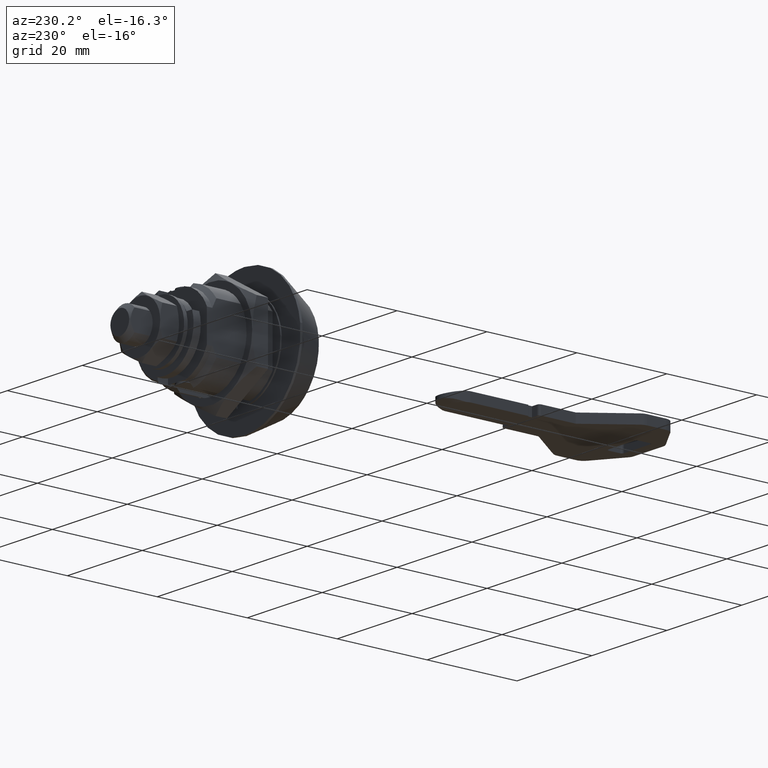
[diagram: clean part render]
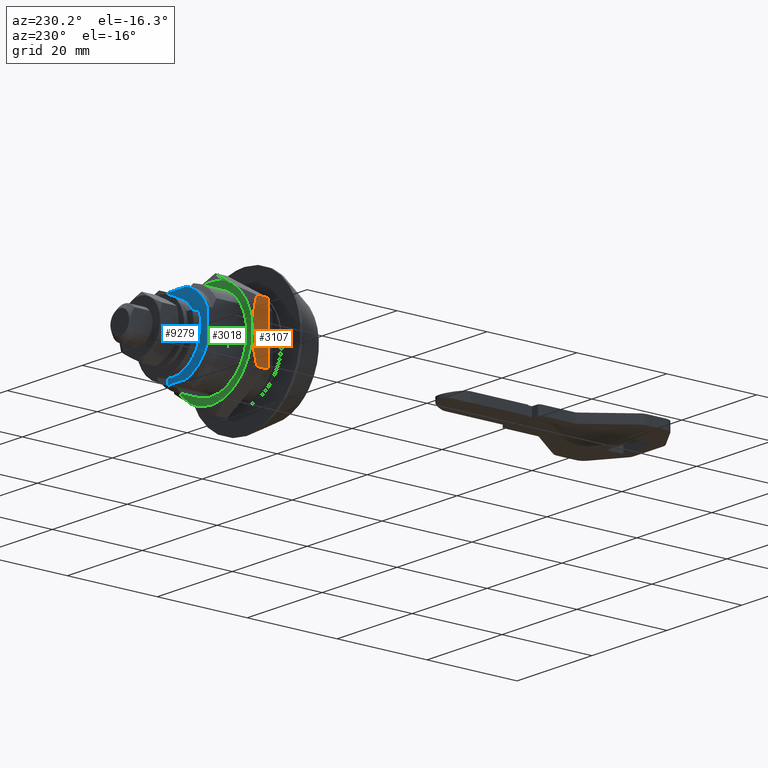
[diagram: same view with three faces highlighted in distinct colors, each labeled with its STEP entity id]
A machine part, auxiliary view with three faces highlighted in distinct colors.
Their STEP definitions:

[orange] entity #3107 — the highlighted face is a freeform B-spline surface patch.
#2591=CARTESIAN_POINT('',(14.696936499999961,10.999999999735300,-3.595346E-012));
#2592=VERTEX_POINT('',#2591);
#2593=CARTESIAN_POINT('',(13.714456260781160,11.0,6.350852499728091));
#2594=VERTEX_POINT('',#2593);
#2595=CARTESIAN_POINT('',(14.696936499999961,10.999999999735300,-3.595346E-012));
#2596=CARTESIAN_POINT('',(14.696936499683121,11.0,0.000649095458450));
#2597=CARTESIAN_POINT('',(14.696936466676410,11.0,0.001298193034377));
#2598=CARTESIAN_POINT('',(14.696881535420310,11.0,0.538752455056011));
#2599=CARTESIAN_POINT('',(14.674018618691980,11.0,1.077299106345763));
#2600=CARTESIAN_POINT('',(14.617292834053959,11.0,1.752631571285625));
#2601=CARTESIAN_POINT('',(14.604553853599279,11.0,1.887688777856347));
#2602=CARTESIAN_POINT('',(14.576460803111591,11.0,2.156802596397145));
#2603=CARTESIAN_POINT('',(14.530364736479941,11.0,2.559401312470946));
#2604=CARTESIAN_POINT('',(14.472827151715050,11.0,2.958899947679643));
#2605=CARTESIAN_POINT('',(14.257617568047310,11.0,4.284217053862167));
#2606=CARTESIAN_POINT('',(14.010811587521379,11.0,5.324247477779774));
#2607=CARTESIAN_POINT('',(13.714456260781169,11.0,6.350852499728091));
#2608=B_SPLINE_CURVE_WITH_KNOTS('',3,(#2595,#2596,#2597,#2598,#2599,#2600,#2601,#2602,#2603,#2604,#2605,#2606,#2607),.UNSPECIFIED.,.F.,.U.,(4,2,2,2,1,2,4),(0.499848851089907,0.500000000000000,0.625000000000000,0.656250000000000,0.687500000000000,0.750000000000000,1.0),.UNSPECIFIED.);
#2609=EDGE_CURVE('',#2592,#2594,#2608,.T.);
#2658=CARTESIAN_POINT('',(13.714456116288661,11.0,-6.350853000272000));
#2659=VERTEX_POINT('',#2658);
#2673=CARTESIAN_POINT('',(13.714456116288661,11.0,-6.350853000272000));
#2674=CARTESIAN_POINT('',(13.863602849991469,11.0,-5.834193561550443));
#2675=CARTESIAN_POINT('',(14.000526647742580,11.0,-5.312781220465534));
#2676=CARTESIAN_POINT('',(14.243473329701541,11.0,-4.257940683382483));
#2677=CARTESIAN_POINT('',(14.348373737238671,11.0,-3.729045310445259));
#2678=CARTESIAN_POINT('',(14.519348711964980,11.0,-2.668498013687919));
#2679=CARTESIAN_POINT('',(14.585409717107330,11.0,-2.136741072788912));
#2680=CARTESIAN_POINT('',(14.674193380271610,11.0,-1.070567223564930));
#2681=CARTESIAN_POINT('',(14.696936229430859,11.0,-0.536151856917068));
#2682=CARTESIAN_POINT('',(14.696936499999961,10.999999999735300,-3.595346E-012));
#2683=B_SPLINE_CURVE_WITH_KNOTS('',3,(#2673,#2674,#2675,#2676,#2677,#2678,#2679,#2680,#2681,#2682),.UNSPECIFIED.,.F.,.U.,(4,2,2,2,4),(0.0,0.125000000000000,0.250000000000000,0.375000000000000,0.499848851058027),.UNSPECIFIED.);
#2684=EDGE_CURVE('',#2659,#2592,#2683,.T.);
#2950=CARTESIAN_POINT('',(11.196936499999980,11.0,6.350852499728091));
#2951=VERTEX_POINT('',#2950);
#2957=CARTESIAN_POINT('',(11.196936499999980,11.0,-6.350853000272000));
#2958=VERTEX_POINT('',#2957);
#2959=CARTESIAN_POINT('',(11.196936499999980,11.0,6.350852499728091));
#2960=CARTESIAN_POINT('',(11.196936499999980,11.0,-6.350853000272000));
#2961=QUASI_UNIFORM_CURVE('',1,(#2959,#2960),.UNSPECIFIED.,.F.,.U.);
#2962=EDGE_CURVE('',#2951,#2958,#2961,.T.);
#3082=CARTESIAN_POINT('',(13.714456116288661,11.0,-6.350853000272000));
#3083=CARTESIAN_POINT('',(11.196936499999980,11.0,-6.350853000272000));
#3084=QUASI_UNIFORM_CURVE('',1,(#3082,#3083),.UNSPECIFIED.,.F.,.U.);
#3085=EDGE_CURVE('',#2659,#2958,#3084,.T.);
#3091=CARTESIAN_POINT('',(11.022111605350149,11.0,-6.985303165378635));
#3092=CARTESIAN_POINT('',(11.022111605350149,11.0,6.985303005521017));
#3093=CARTESIAN_POINT('',(14.871761582404419,11.0,-6.985303165378635));
#3094=CARTESIAN_POINT('',(14.871761582404419,11.0,6.985303005521017));
#3095=B_SPLINE_SURFACE_WITH_KNOTS('',1,1,((#3091,#3093),(#3092,#3094)),.UNSPECIFIED.,.F.,.F.,.U.,(2,2),(2,2),(0.0,13.970606170899650),(0.0,3.849649977054277),.UNSPECIFIED.);
#3096=ORIENTED_EDGE('',*,*,#2684,.F.);
#3097=ORIENTED_EDGE('',*,*,#3085,.T.);
#3098=ORIENTED_EDGE('',*,*,#2962,.F.);
#3099=CARTESIAN_POINT('',(13.714456260781160,11.0,6.350852499728091));
#3100=CARTESIAN_POINT('',(11.196936499999980,11.0,6.350852499728091));
#3101=QUASI_UNIFORM_CURVE('',1,(#3099,#3100),.UNSPECIFIED.,.F.,.U.);
#3102=EDGE_CURVE('',#2594,#2951,#3101,.T.);
#3103=ORIENTED_EDGE('',*,*,#3102,.F.);
#3104=ORIENTED_EDGE('',*,*,#2609,.F.);
#3105=EDGE_LOOP('',(#3096,#3097,#3098,#3103,#3104));
#3106=FACE_OUTER_BOUND('',#3105,.T.);
#3107=ADVANCED_FACE('',(#3106),#3095,.T.);

[blue] entity #9279 — the highlighted face is a freeform B-spline surface patch.
#7384=CARTESIAN_POINT('',(22.199999999999999,-4.799817230746421,0.041887370760816));
#7385=VERTEX_POINT('',#7384);
#7391=CARTESIAN_POINT('',(22.199999999999999,-3.595346E-012,-4.800000000038019));
#7392=VERTEX_POINT('',#7391);
#7393=CARTESIAN_POINT('',(22.199999999999996,-4.799817230746421,0.041887370760816));
#7394=CARTESIAN_POINT('',(22.200000000000003,-4.800000000041614,0.020944084307844));
#7395=CARTESIAN_POINT('',(22.199999999999999,-4.800000000041615,0.0));
#7396=CARTESIAN_POINT('',(22.200000000000006,-4.800000000041614,-4.800000000038019));
#7397=CARTESIAN_POINT('',(22.199999999999999,-3.595346E-012,-4.800000000038019));
#7405=(BOUNDED_CURVE()B_SPLINE_CURVE(2,(#7393,#7394,#7395,#7396,#7397),.UNSPECIFIED.,.F.,.U.)B_SPLINE_CURVE_WITH_KNOTS((3,2,3),(0.248460105637982,0.250000000000000,0.500000000000000),.UNSPECIFIED.)CURVE()GEOMETRIC_REPRESENTATION_ITEM()RATIONAL_B_SPLINE_CURVE((0.996414028037849,0.998195901534704,1.0,0.707106781186548,1.0))REPRESENTATION_ITEM(''));
#7406=EDGE_CURVE('',#7385,#7392,#7405,.T.);
#7408=CARTESIAN_POINT('',(22.199999999999999,4.762878908323616,-0.595805761050369));
#7409=VERTEX_POINT('',#7408);
#7410=CARTESIAN_POINT('',(22.199999999999999,-3.595346E-012,-4.800000000038019));
#7411=CARTESIAN_POINT('',(22.199999999999992,4.236961034630419,-4.800000000038019));
#7412=CARTESIAN_POINT('',(22.199999999999996,4.762878908323616,-0.595805761050369));
#7420=(BOUNDED_CURVE()B_SPLINE_CURVE(2,(#7410,#7411,#7412),.UNSPECIFIED.,.F.,.U.)B_SPLINE_CURVE_WITH_KNOTS((3,3),(0.500000000000000,0.728526377274444),.UNSPECIFIED.)CURVE()GEOMETRIC_REPRESENTATION_ITEM()RATIONAL_B_SPLINE_CURVE((1.0,0.732264695105243,0.954006024579027))REPRESENTATION_ITEM(''));
#7421=EDGE_CURVE('',#7392,#7409,#7420,.T.);
#7471=CARTESIAN_POINT('',(22.199999999999999,-3.595346E-012,4.800000000038019));
#7472=VERTEX_POINT('',#7471);
#7473=CARTESIAN_POINT('',(22.199999999999996,4.762878908323616,-0.595805761050369));
#7474=CARTESIAN_POINT('',(22.199999999999996,4.800000000034425,-0.299059277072419));
#7475=CARTESIAN_POINT('',(22.199999999999999,4.800000000034425,0.0));
#7476=CARTESIAN_POINT('',(22.200000000000006,4.800000000034424,4.800000000038019));
#7477=CARTESIAN_POINT('',(22.199999999999999,-3.595346E-012,4.800000000038019));
#7485=(BOUNDED_CURVE()B_SPLINE_CURVE(2,(#7473,#7474,#7475,#7476,#7477),.UNSPECIFIED.,.F.,.U.)B_SPLINE_CURVE_WITH_KNOTS((3,2,3),(0.728526377274444,0.750000000000000,1.0),.UNSPECIFIED.)CURVE()GEOMETRIC_REPRESENTATION_ITEM()RATIONAL_B_SPLINE_CURVE((0.954006024579027,0.974842086081305,1.0,0.707106781186548,1.0))REPRESENTATION_ITEM(''));
#7486=EDGE_CURVE('',#7409,#7472,#7485,.T.);
#7488=CARTESIAN_POINT('',(22.199999999999999,-3.595346E-012,4.800000000038019));
#7489=CARTESIAN_POINT('',(22.200000000000003,-4.758293810166945,4.800000000038020));
#7490=CARTESIAN_POINT('',(22.199999999999996,-4.799817230746421,0.041887370760816));
#7498=(BOUNDED_CURVE()B_SPLINE_CURVE(2,(#7488,#7489,#7490),.UNSPECIFIED.,.F.,.U.)B_SPLINE_CURVE_WITH_KNOTS((3,3),(0.0,0.248460105637982),.UNSPECIFIED.)CURVE()GEOMETRIC_REPRESENTATION_ITEM()RATIONAL_B_SPLINE_CURVE((1.0,0.708910879651844,0.996414028037849))REPRESENTATION_ITEM(''));
#7499=EDGE_CURVE('',#7472,#7385,#7498,.T.);
#8160=CARTESIAN_POINT('',(22.199999999999999,-2.722399E-010,-8.249999999728090));
#8161=VERTEX_POINT('',#8160);
#8211=CARTESIAN_POINT('',(22.200000000000252,1.799999999727915,-8.249999999728090));
#8212=VERTEX_POINT('',#8211);
#8249=CARTESIAN_POINT('',(22.200000000000252,1.799999999727915,-8.409518416442550));
#8250=VERTEX_POINT('',#8249);
#8256=CARTESIAN_POINT('',(22.200000000000252,1.799999999727915,-8.409518416442550));
#8257=CARTESIAN_POINT('',(22.200000000000252,1.799999999727915,-8.249999999728090));
#8258=QUASI_UNIFORM_CURVE('',1,(#8256,#8257),.UNSPECIFIED.,.F.,.U.);
#8259=EDGE_CURVE('',#8250,#8212,#8258,.T.);
#8346=CARTESIAN_POINT('',(22.199999999999999,-2.722389E-010,8.249999999728090));
#8347=VERTEX_POINT('',#8346);
#8417=CARTESIAN_POINT('',(22.199999999999999,-1.800000000272080,8.249999999728090));
#8418=VERTEX_POINT('',#8417);
#8451=CARTESIAN_POINT('',(22.199999999999999,-1.800000000272080,8.409518416318871));
#8452=VERTEX_POINT('',#8451);
#8458=CARTESIAN_POINT('',(22.199999999999999,-1.800000000272080,8.409518416318871));
#8459=CARTESIAN_POINT('',(22.199999999999999,-1.800000000272080,8.249999999728090));
#8460=QUASI_UNIFORM_CURVE('',1,(#8458,#8459),.UNSPECIFIED.,.F.,.U.);
#8461=EDGE_CURVE('',#8452,#8418,#8460,.T.);
#8704=CARTESIAN_POINT('',(22.199999999999999,7.900000000000000,3.398529092919860));
#8705=VERTEX_POINT('',#8704);
#8711=CARTESIAN_POINT('',(22.199999999999999,7.900000000000000,-3.398529092927050));
#8712=VERTEX_POINT('',#8711);
#8713=CARTESIAN_POINT('',(22.199999999999999,7.900000000000000,3.398529092919860));
#8714=CARTESIAN_POINT('',(22.199999999999999,7.900000000000000,-3.398529092927050));
#8715=QUASI_UNIFORM_CURVE('',1,(#8713,#8714),.UNSPECIFIED.,.F.,.U.);
#8716=EDGE_CURVE('',#8705,#8712,#8715,.T.);
#8773=CARTESIAN_POINT('',(22.199999999999999,-2.500000000000000,-8.228608630595209));
#8774=VERTEX_POINT('',#8773);
#8780=CARTESIAN_POINT('',(22.199999999999999,-2.500000000000000,-6.000000000271900));
#8781=VERTEX_POINT('',#8780);
#8782=CARTESIAN_POINT('',(22.199999999999999,-2.500000000000000,-6.000000000271900));
#8783=CARTESIAN_POINT('',(22.199999999999999,-2.500000000000000,-8.228608630595209));
#8784=QUASI_UNIFORM_CURVE('',1,(#8782,#8783),.UNSPECIFIED.,.F.,.U.);
#8785=EDGE_CURVE('',#8781,#8774,#8784,.T.);
#8813=CARTESIAN_POINT('',(22.199999999999999,-2.500000000000000,5.999999999728100));
#8814=VERTEX_POINT('',#8813);
#8815=CARTESIAN_POINT('',(22.199999999999999,-2.500000000000001,5.999999999728103));
#8816=CARTESIAN_POINT('',(22.199999999999999,-6.500000000000000,4.333333333061437));
#8817=CARTESIAN_POINT('',(22.199999999999999,-6.500000000000000,-2.718963E-010));
#8818=CARTESIAN_POINT('',(22.199999999999999,-6.500000000000000,-4.333333333605232));
#8819=CARTESIAN_POINT('',(22.199999999999999,-2.499999999999997,-6.000000000271897));
#8827=(BOUNDED_CURVE()B_SPLINE_CURVE(2,(#8815,#8816,#8817,#8818,#8819),.UNSPECIFIED.,.F.,.U.)B_SPLINE_CURVE_WITH_KNOTS((3,2,3),(0.0,0.500000000000000,1.0),.UNSPECIFIED.)CURVE()GEOMETRIC_REPRESENTATION_ITEM()RATIONAL_B_SPLINE_CURVE((1.0,0.832050294337844,1.0,0.832050294337844,1.0))REPRESENTATION_ITEM(''));
#8828=EDGE_CURVE('',#8814,#8781,#8827,.T.);
#8861=CARTESIAN_POINT('',(22.199999999999999,-2.500000000000000,8.228608630596389));
#8862=VERTEX_POINT('',#8861);
#8875=CARTESIAN_POINT('',(22.199999999999999,-2.500000000000000,8.228608630596389));
#8876=CARTESIAN_POINT('',(22.199999999999999,-2.500000000000000,5.999999999728100));
#8877=QUASI_UNIFORM_CURVE('',1,(#8875,#8876),.UNSPECIFIED.,.F.,.U.);
#8878=EDGE_CURVE('',#8862,#8814,#8877,.T.);
#9120=CARTESIAN_POINT('',(22.199999999999999,7.899999999999984,-3.398529092927042));
#9121=CARTESIAN_POINT('',(22.199999999999996,6.144330618476888,-7.479644109100551));
#9122=CARTESIAN_POINT('',(22.200000000000252,1.799999999727915,-8.409518416442550));
#9130=(BOUNDED_CURVE()B_SPLINE_CURVE(2,(#9120,#9121,#9122),.UNSPECIFIED.,.F.,.U.)CURVE()GEOMETRIC_REPRESENTATION_ITEM()QUASI_UNIFORM_CURVE()RATIONAL_B_SPLINE_CURVE((1.0,0.888451205674028,1.0))REPRESENTATION_ITEM(''));
#9131=EDGE_CURVE('',#8712,#8250,#9130,.T.);
#9154=CARTESIAN_POINT('',(22.200000000000252,1.799999999727915,8.409518416435340));
#9155=VERTEX_POINT('',#9154);
#9161=CARTESIAN_POINT('',(22.200000000000252,1.799999999727915,8.409518416435340));
#9162=CARTESIAN_POINT('',(22.200000000000003,6.144330618476889,7.479644109093361));
#9163=CARTESIAN_POINT('',(22.199999999999999,7.899999999999984,3.398529092919853));
#9171=(BOUNDED_CURVE()B_SPLINE_CURVE(2,(#9161,#9162,#9163),.UNSPECIFIED.,.F.,.U.)CURVE()GEOMETRIC_REPRESENTATION_ITEM()QUASI_UNIFORM_CURVE()RATIONAL_B_SPLINE_CURVE((1.0,0.888451205674028,1.0))REPRESENTATION_ITEM(''));
#9172=EDGE_CURVE('',#9155,#8705,#9171,.T.);
#9196=CARTESIAN_POINT('',(22.199999999999999,-7.219279972089860,-9.249629115761159));
#9197=CARTESIAN_POINT('',(22.199999999999999,-7.219279972089860,9.249629717249578));
#9198=CARTESIAN_POINT('',(22.199999999999999,8.619280358328098,-9.249629115761159));
#9199=CARTESIAN_POINT('',(22.199999999999999,8.619280358328098,9.249629717249578));
#9200=B_SPLINE_SURFACE_WITH_KNOTS('',1,1,((#9196,#9198),(#9197,#9199)),.UNSPECIFIED.,.F.,.F.,.U.,(2,2),(2,2),(0.0,18.499258833010739),(0.0,15.838560330417961),.UNSPECIFIED.);
#9201=CARTESIAN_POINT('',(22.199999999999999,-1.800000000272080,-8.409518416326090));
#9202=VERTEX_POINT('',#9201);
#9203=CARTESIAN_POINT('',(22.199999999999999,-1.800000000272080,-8.409518416326097));
#9204=CARTESIAN_POINT('',(22.199999999999999,-2.153805622295470,-8.333788738571631));
#9205=CARTESIAN_POINT('',(22.199999999999999,-2.499999999999997,-8.228608630595211));
#9213=(BOUNDED_CURVE()B_SPLINE_CURVE(2,(#9203,#9204,#9205),.UNSPECIFIED.,.F.,.U.)CURVE()GEOMETRIC_REPRESENTATION_ITEM()QUASI_UNIFORM_CURVE()RATIONAL_B_SPLINE_CURVE((1.0,0.999116144773441,1.0))REPRESENTATION_ITEM(''));
#9214=EDGE_CURVE('',#9202,#8774,#9213,.T.);
#9215=ORIENTED_EDGE('',*,*,#9214,.F.);
#9216=CARTESIAN_POINT('',(22.199999999999999,-1.800000000272080,-8.249999999728090));
#9217=VERTEX_POINT('',#9216);
#9218=CARTESIAN_POINT('',(22.199999999999999,-1.800000000272080,-8.409518416326090));
#9219=CARTESIAN_POINT('',(22.199999999999999,-1.800000000272080,-8.249999999728090));
#9220=QUASI_UNIFORM_CURVE('',1,(#9218,#9219),.UNSPECIFIED.,.F.,.U.);
#9221=EDGE_CURVE('',#9202,#9217,#9220,.T.);
#9222=ORIENTED_EDGE('',*,*,#9221,.T.);
#9223=CARTESIAN_POINT('',(22.199999999999999,-2.722399E-010,-8.249999999728090));
#9224=CARTESIAN_POINT('',(22.199999999999999,-1.800000000272080,-8.249999999728090));
#9225=QUASI_UNIFORM_CURVE('',1,(#9223,#9224),.UNSPECIFIED.,.F.,.U.);
#9226=EDGE_CURVE('',#8161,#9217,#9225,.T.);
#9227=ORIENTED_EDGE('',*,*,#9226,.F.);
#9228=CARTESIAN_POINT('',(22.200000000000252,1.799999999727915,-8.249999999728090));
#9229=CARTESIAN_POINT('',(22.199999999999999,-2.722399E-010,-8.249999999728090));
#9230=QUASI_UNIFORM_CURVE('',1,(#9228,#9229),.UNSPECIFIED.,.F.,.U.);
#9231=EDGE_CURVE('',#8212,#8161,#9230,.T.);
#9232=ORIENTED_EDGE('',*,*,#9231,.F.);
#9233=ORIENTED_EDGE('',*,*,#8259,.F.);
#9234=ORIENTED_EDGE('',*,*,#9131,.F.);
#9235=ORIENTED_EDGE('',*,*,#8716,.F.);
#9236=ORIENTED_EDGE('',*,*,#9172,.F.);
#9237=CARTESIAN_POINT('',(22.200000000000252,1.799999999727915,8.249999999728090));
#9238=VERTEX_POINT('',#9237);
#9239=CARTESIAN_POINT('',(22.200000000000252,1.799999999727915,8.409518416435340));
#9240=CARTESIAN_POINT('',(22.200000000000252,1.799999999727915,8.249999999728090));
#9241=QUASI_UNIFORM_CURVE('',1,(#9239,#9240),.UNSPECIFIED.,.F.,.U.);
#9242=EDGE_CURVE('',#9155,#9238,#9241,.T.);
#9243=ORIENTED_EDGE('',*,*,#9242,.T.);
#9244=CARTESIAN_POINT('',(22.200000000000252,1.799999999727915,8.249999999728090));
#9245=CARTESIAN_POINT('',(22.199999999999999,-2.722389E-010,8.249999999728090));
#9246=QUASI_UNIFORM_CURVE('',1,(#9244,#9245),.UNSPECIFIED.,.F.,.U.);
#9247=EDGE_CURVE('',#9238,#8347,#9246,.T.);
#9248=ORIENTED_EDGE('',*,*,#9247,.T.);
#9249=CARTESIAN_POINT('',(22.199999999999999,-2.722389E-010,8.249999999728090));
#9250=CARTESIAN_POINT('',(22.199999999999999,-1.800000000272080,8.249999999728090));
#9251=QUASI_UNIFORM_CURVE('',1,(#9249,#9250),.UNSPECIFIED.,.F.,.U.);
#9252=EDGE_CURVE('',#8347,#8418,#9251,.T.);
#9253=ORIENTED_EDGE('',*,*,#9252,.T.);
#9254=ORIENTED_EDGE('',*,*,#8461,.F.);
#9255=CARTESIAN_POINT('',(22.199999999999999,-2.500000000000000,8.228608630596389));
#9256=CARTESIAN_POINT('',(22.200000000000003,-2.153805622294271,8.333788738564696));
#9257=CARTESIAN_POINT('',(22.199999999999999,-1.800000000272090,8.409518416318905));
#9265=(BOUNDED_CURVE()B_SPLINE_CURVE(2,(#9255,#9256,#9257),.UNSPECIFIED.,.F.,.U.)CURVE()GEOMETRIC_REPRESENTATION_ITEM()QUASI_UNIFORM_CURVE()RATIONAL_B_SPLINE_CURVE((1.0,0.999116144773447,1.0))REPRESENTATION_ITEM(''));
#9266=EDGE_CURVE('',#8862,#8452,#9265,.T.);
#9267=ORIENTED_EDGE('',*,*,#9266,.F.);
#9268=ORIENTED_EDGE('',*,*,#8878,.T.);
#9269=ORIENTED_EDGE('',*,*,#8828,.T.);
#9270=ORIENTED_EDGE('',*,*,#8785,.T.);
#9271=EDGE_LOOP('',(#9215,#9222,#9227,#9232,#9233,#9234,#9235,#9236,#9243,#9248,#9253,#9254,#9267,#9268,#9269,#9270));
#9272=FACE_OUTER_BOUND('',#9271,.T.);
#9273=ORIENTED_EDGE('',*,*,#7499,.F.);
#9274=ORIENTED_EDGE('',*,*,#7486,.F.);
#9275=ORIENTED_EDGE('',*,*,#7421,.F.);
#9276=ORIENTED_EDGE('',*,*,#7406,.F.);
#9277=EDGE_LOOP('',(#9273,#9274,#9275,#9276));
#9278=FACE_BOUND('',#9277,.T.);
#9279=ADVANCED_FACE('',(#9272,#9278),#9200,.F.);

[green] entity #3018 — the highlighted face is a freeform B-spline surface patch.
#2447=CARTESIAN_POINT('',(14.696936499999920,9.470714670459472,-0.745361409753050));
#2448=VERTEX_POINT('',#2447);
#2454=CARTESIAN_POINT('',(14.696936499999920,0.0,9.499999999728102));
#2455=VERTEX_POINT('',#2454);
#2456=CARTESIAN_POINT('',(14.696936499999918,9.470714670459472,-0.745361409753050));
#2457=CARTESIAN_POINT('',(14.696936499999918,9.500000000000000,-0.373256016911692));
#2458=CARTESIAN_POINT('',(14.696936499999920,9.500000000000000,-2.718963E-010));
#2459=CARTESIAN_POINT('',(14.696936499999921,9.500000000000000,9.499999999728102));
#2460=CARTESIAN_POINT('',(14.696936499999920,0.0,9.499999999728102));
#2468=(BOUNDED_CURVE()B_SPLINE_CURVE(2,(#2456,#2457,#2458,#2459,#2460),.UNSPECIFIED.,.F.,.U.)B_SPLINE_CURVE_WITH_KNOTS((3,2,3),(0.736331300630355,0.750000000000000,1.0),.UNSPECIFIED.)CURVE()GEOMETRIC_REPRESENTATION_ITEM()RATIONAL_B_SPLINE_CURVE((0.969723356166782,0.983986122578525,1.0,0.707106781186548,1.0))REPRESENTATION_ITEM(''));
#2469=EDGE_CURVE('',#2448,#2455,#2468,.T.);
#2471=CARTESIAN_POINT('',(14.696936499999920,-9.470714670459470,0.745361409209261));
#2472=VERTEX_POINT('',#2471);
#2473=CARTESIAN_POINT('',(14.696936499999920,0.0,9.499999999728102));
#2474=CARTESIAN_POINT('',(14.696936499999921,-8.781709670629020,9.499999999728106));
#2475=CARTESIAN_POINT('',(14.696936499999923,-9.470714670459470,0.745361409209261));
#2483=(BOUNDED_CURVE()B_SPLINE_CURVE(2,(#2473,#2474,#2475),.UNSPECIFIED.,.F.,.U.)B_SPLINE_CURVE_WITH_KNOTS((3,3),(0.0,0.236331300630355),.UNSPECIFIED.)CURVE()GEOMETRIC_REPRESENTATION_ITEM()RATIONAL_B_SPLINE_CURVE((1.0,0.723120658608023,0.969723356166782))REPRESENTATION_ITEM(''));
#2484=EDGE_CURVE('',#2455,#2472,#2483,.T.);
#2530=CARTESIAN_POINT('',(14.696936499999920,0.0,-9.500000000271896));
#2531=VERTEX_POINT('',#2530);
#2532=CARTESIAN_POINT('',(14.696936499999923,-9.470714670459470,0.745361409209261));
#2533=CARTESIAN_POINT('',(14.696936499999921,-9.500000000000000,0.373256016367902));
#2534=CARTESIAN_POINT('',(14.696936499999920,-9.500000000000000,-2.718963E-010));
#2535=CARTESIAN_POINT('',(14.696936499999921,-9.500000000000000,-9.500000000271896));
#2536=CARTESIAN_POINT('',(14.696936499999920,0.0,-9.500000000271896));
#2544=(BOUNDED_CURVE()B_SPLINE_CURVE(2,(#2532,#2533,#2534,#2535,#2536),.UNSPECIFIED.,.F.,.U.)B_SPLINE_CURVE_WITH_KNOTS((3,2,3),(0.236331300630355,0.250000000000000,0.500000000000000),.UNSPECIFIED.)CURVE()GEOMETRIC_REPRESENTATION_ITEM()RATIONAL_B_SPLINE_CURVE((0.969723356166782,0.983986122578525,1.0,0.707106781186548,1.0))REPRESENTATION_ITEM(''));
#2545=EDGE_CURVE('',#2472,#2531,#2544,.T.);
#2547=CARTESIAN_POINT('',(14.696936499999920,0.0,-9.500000000271896));
#2548=CARTESIAN_POINT('',(14.696936499999916,8.781709670629013,-9.500000000271896));
#2549=CARTESIAN_POINT('',(14.696936499999920,9.470714670459474,-0.745361409753050));
#2557=(BOUNDED_CURVE()B_SPLINE_CURVE(2,(#2547,#2548,#2549),.UNSPECIFIED.,.F.,.U.)B_SPLINE_CURVE_WITH_KNOTS((3,3),(0.500000000000000,0.736331300630355),.UNSPECIFIED.)CURVE()GEOMETRIC_REPRESENTATION_ITEM()RATIONAL_B_SPLINE_CURVE((1.0,0.723120658608023,0.969723356166781))REPRESENTATION_ITEM(''));
#2558=EDGE_CURVE('',#2531,#2448,#2557,.T.);
#2591=CARTESIAN_POINT('',(14.696936499999961,10.999999999735300,-3.595346E-012));
#2592=VERTEX_POINT('',#2591);
#2611=CARTESIAN_POINT('',(14.696936499999961,5.500000025143049,9.526279426803219));
#2612=VERTEX_POINT('',#2611);
#2626=CARTESIAN_POINT('',(14.696936499999961,5.500000025143055,9.526279426803230));
#2627=CARTESIAN_POINT('',(14.696936499999955,10.999999999735300,6.350852941472449));
#2628=CARTESIAN_POINT('',(14.696936499999961,10.999999999735300,-3.595346E-012));
#2636=(BOUNDED_CURVE()B_SPLINE_CURVE(2,(#2626,#2627,#2628),.UNSPECIFIED.,.F.,.U.)CURVE()GEOMETRIC_REPRESENTATION_ITEM()QUASI_UNIFORM_CURVE()RATIONAL_B_SPLINE_CURVE((1.0,0.866025404447746,1.0))REPRESENTATION_ITEM(''));
#2637=EDGE_CURVE('',#2612,#2592,#2636,.T.);
#2656=CARTESIAN_POINT('',(14.696936499999961,5.500000025143010,-9.526279426810440));
#2657=VERTEX_POINT('',#2656);
#2686=CARTESIAN_POINT('',(14.696936499999961,10.999999999735300,-3.595346E-012));
#2687=CARTESIAN_POINT('',(14.696936499999959,10.999999999735300,-6.350852941479672));
#2688=CARTESIAN_POINT('',(14.696936499999961,5.500000025143014,-9.526279426810447));
#2696=(BOUNDED_CURVE()B_SPLINE_CURVE(2,(#2686,#2687,#2688),.UNSPECIFIED.,.F.,.U.)CURVE()GEOMETRIC_REPRESENTATION_ITEM()QUASI_UNIFORM_CURVE()RATIONAL_B_SPLINE_CURVE((1.0,0.866025404447745,1.0))REPRESENTATION_ITEM(''));
#2697=EDGE_CURVE('',#2592,#2657,#2696,.T.);
#2731=CARTESIAN_POINT('',(14.696936499999961,-5.500000025143110,-9.526279426810381));
#2732=VERTEX_POINT('',#2731);
#2733=CARTESIAN_POINT('',(14.696936499999961,5.500000025143014,-9.526279426810447));
#2734=CARTESIAN_POINT('',(14.696936499999961,-6.591949E-014,-12.701705941326745));
#2735=CARTESIAN_POINT('',(14.696936499999961,-5.500000025143114,-9.526279426810390));
#2743=(BOUNDED_CURVE()B_SPLINE_CURVE(2,(#2733,#2734,#2735),.UNSPECIFIED.,.F.,.U.)CURVE()GEOMETRIC_REPRESENTATION_ITEM()QUASI_UNIFORM_CURVE()RATIONAL_B_SPLINE_CURVE((1.0,0.866025402457823,1.0))REPRESENTATION_ITEM(''));
#2744=EDGE_CURVE('',#2657,#2732,#2743,.T.);
#2791=CARTESIAN_POINT('',(14.696936499999961,-10.999999999735300,-3.595346E-012));
#2792=VERTEX_POINT('',#2791);
#2793=CARTESIAN_POINT('',(14.696936499999961,-5.500000025143114,-9.526279426810390));
#2794=CARTESIAN_POINT('',(14.696936499999966,-10.999999999735300,-6.350852941479595));
#2795=CARTESIAN_POINT('',(14.696936499999961,-10.999999999735300,-3.595346E-012));
#2803=(BOUNDED_CURVE()B_SPLINE_CURVE(2,(#2793,#2794,#2795),.UNSPECIFIED.,.F.,.U.)CURVE()GEOMETRIC_REPRESENTATION_ITEM()QUASI_UNIFORM_CURVE()RATIONAL_B_SPLINE_CURVE((1.0,0.866025404447747,1.0))REPRESENTATION_ITEM(''));
#2804=EDGE_CURVE('',#2732,#2792,#2803,.T.);
#2854=CARTESIAN_POINT('',(14.696936499999961,-5.499999833928370,9.526279095609480));
#2855=VERTEX_POINT('',#2854);
#2856=CARTESIAN_POINT('',(14.696936499999961,-10.999999999735300,-3.595346E-012));
#2857=CARTESIAN_POINT('',(14.696936499999961,-10.999999999735300,6.350852941472375));
#2858=CARTESIAN_POINT('',(14.696936499999961,-5.499999833928370,9.526279095609480));
#2866=(BOUNDED_CURVE()B_SPLINE_CURVE(2,(#2856,#2857,#2858),.UNSPECIFIED.,.F.,.U.)CURVE()GEOMETRIC_REPRESENTATION_ITEM()QUASI_UNIFORM_CURVE()RATIONAL_B_SPLINE_CURVE((1.0,0.866025404447748,1.0))REPRESENTATION_ITEM(''));
#2867=EDGE_CURVE('',#2792,#2855,#2866,.T.);
#2927=CARTESIAN_POINT('',(14.696936499999961,-5.499999833928370,9.526279095609480));
#2928=CARTESIAN_POINT('',(14.696936499999959,-5.984796E-014,12.701705941319577));
#2929=CARTESIAN_POINT('',(14.696936499999961,5.500000025143057,9.526279426803228));
#2937=(BOUNDED_CURVE()B_SPLINE_CURVE(2,(#2927,#2928,#2929),.UNSPECIFIED.,.F.,.U.)CURVE()GEOMETRIC_REPRESENTATION_ITEM()QUASI_UNIFORM_CURVE()RATIONAL_B_SPLINE_CURVE((1.0,0.866025402457821,1.0))REPRESENTATION_ITEM(''));
#2938=EDGE_CURVE('',#2855,#2612,#2937,.T.);
#2999=CARTESIAN_POINT('',(14.696936499999961,-12.098899957068589,12.098900070409440));
#3000=CARTESIAN_POINT('',(14.696936499999961,12.098900547154569,12.098900070409440));
#3001=CARTESIAN_POINT('',(14.696936499999961,-12.098899957068589,-12.098900552550360));
#3002=CARTESIAN_POINT('',(14.696936499999961,12.098900547154569,-12.098900552550360));
#3003=B_SPLINE_SURFACE_WITH_KNOTS('',1,1,((#2999,#3001),(#3000,#3002)),.UNSPECIFIED.,.F.,.F.,.U.,(2,2),(2,2),(0.0,24.197800504223160),(0.0,24.197800622959800),.UNSPECIFIED.);
#3004=ORIENTED_EDGE('',*,*,#2637,.F.);
#3005=ORIENTED_EDGE('',*,*,#2938,.F.);
#3006=ORIENTED_EDGE('',*,*,#2867,.F.);
#3007=ORIENTED_EDGE('',*,*,#2804,.F.);
#3008=ORIENTED_EDGE('',*,*,#2744,.F.);
#3009=ORIENTED_EDGE('',*,*,#2697,.F.);
#3010=EDGE_LOOP('',(#3004,#3005,#3006,#3007,#3008,#3009));
#3011=FACE_OUTER_BOUND('',#3010,.T.);
#3012=ORIENTED_EDGE('',*,*,#2558,.F.);
#3013=ORIENTED_EDGE('',*,*,#2545,.F.);
#3014=ORIENTED_EDGE('',*,*,#2484,.F.);
#3015=ORIENTED_EDGE('',*,*,#2469,.F.);
#3016=EDGE_LOOP('',(#3012,#3013,#3014,#3015));
#3017=FACE_BOUND('',#3016,.T.);
#3018=ADVANCED_FACE('',(#3011,#3017),#3003,.F.);